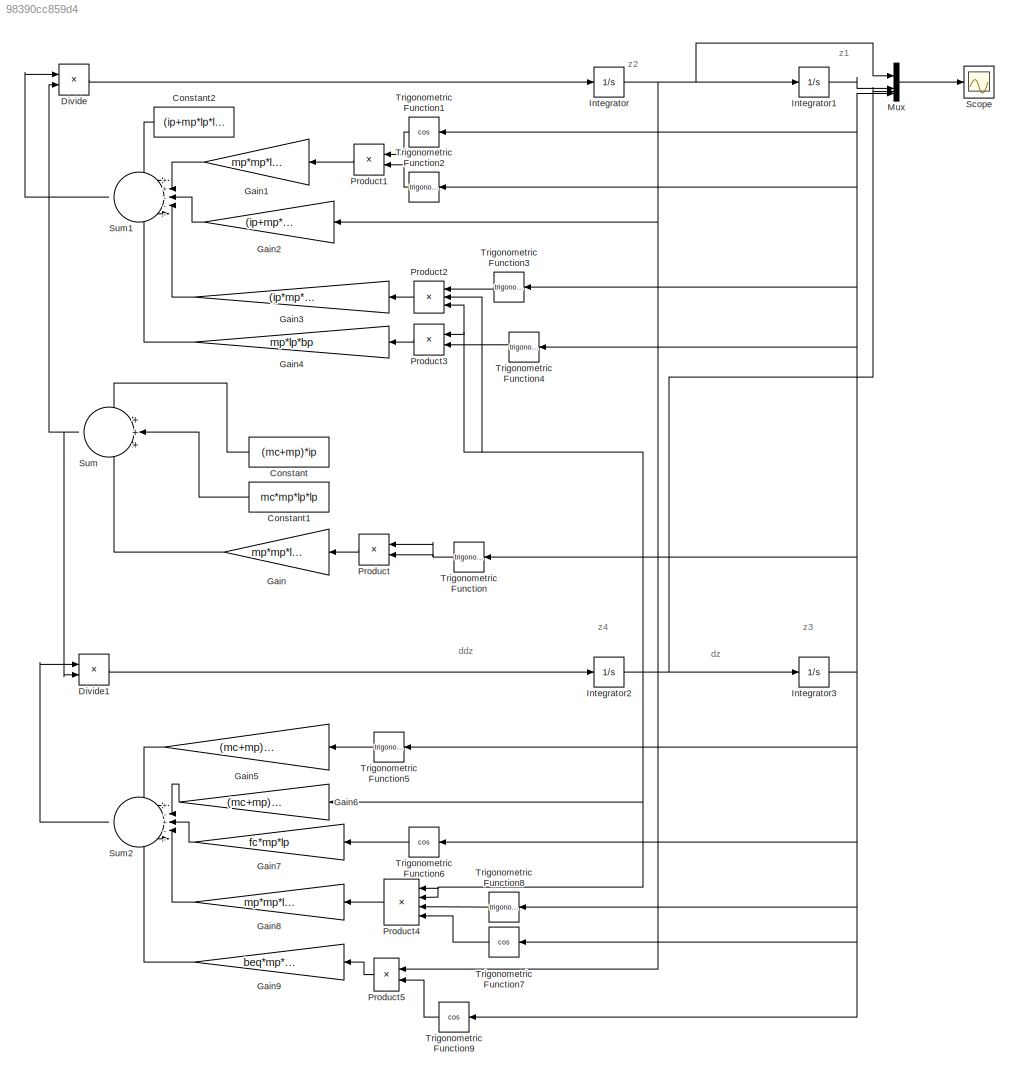
MODEL slx_98390cc859d4
KIND model
CONFIG AbsTol = auto
CONFIG EnableMultiTasking = off
CONFIG FixedStep = auto
CONFIG InitFcn = ip = 0.0079;     \nmc = 0.7031;     \nlp = 0.3302;     \nmp = 0.23;       \nfc = 0;          \nbeq = 4.3;       \ng = 9.81;        \nbp = 0.0024;
CONFIG MaxStep = auto
CONFIG MinStep = auto
CONFIG RelTol = 1e-3
CONFIG SampleTimeConstraint = Unconstrained
CONFIG SolverName = VariableStepAuto
CONFIG StartTime = 0.0
CONFIG StopTime = 10.0
BLOCK [Constant] Constant
  NameLocation = top
  Value = (mc+mp)*ip
BLOCK [Constant] Constant1
  NameLocation = top
  Value = mc*mp*lp*lp
BLOCK [Constant] Constant2
  NameLocation = top
  Value = (ip+mp*lp*lp)*fc
BLOCK [Product] Divide
  Inputs = */
BLOCK [Product] Divide1
  Inputs = */
BLOCK [Gain] Gain
  Gain = mp*mp*lp*lp
  NameLocation = top
BLOCK [Gain] Gain1
  Gain = mp*mp*lp*lp*g
  NameLocation = top
BLOCK [Gain] Gain2
  Gain = (ip+mp*lp*lp)*beq
  NameLocation = top
BLOCK [Gain] Gain3
  Gain = (ip*mp*lp-mp*mp*lp*lp*lp)
  NameLocation = top
BLOCK [Gain] Gain4
  Gain = mp*lp*bp
  NameLocation = top
BLOCK [Gain] Gain5
  Gain = (mc+mp)*mp*g*lp
  NameLocation = top
BLOCK [Gain] Gain6
  Gain = (mc+mp)*bp
  NameLocation = top
BLOCK [Gain] Gain7
  Gain = fc*mp*lp
  NameLocation = top
BLOCK [Gain] Gain8
  Gain = mp*mp*lp*lp
  NameLocation = top
BLOCK [Gain] Gain9
  Gain = beq*mp*lp
  NameLocation = top
BLOCK [Integrator] Integrator
BLOCK [Integrator] Integrator1
BLOCK [Integrator] Integrator2
BLOCK [Integrator] Integrator3
  InitialCondition = 1 * pi/180
BLOCK [Mux] Mux
  DisplayOption = bar
BLOCK [Product] Product
  NameLocation = top
BLOCK [Product] Product1
  NameLocation = top
BLOCK [Product] Product2
  Inputs = 3
  NameLocation = top
BLOCK [Product] Product3
  NameLocation = top
BLOCK [Product] Product4
  Inputs = 4
  NameLocation = top
BLOCK [Product] Product5
  NameLocation = top
BLOCK [Scope] Scope
  Floating = off
  NumInputPorts = 1
  ScopeSpecificationString = Simulink.scopes.TimeScopeBlockCfg('CurrentConfiguration', extmgr.ConfigurationSet(extmgr.Configuration('Core','General UI',true),extmgr.Configuration('Core','Source UI',true),extmgr.Configuration('Sources','WiredSimulink',true),extmgr.Configuration('Visuals','Time Domain',true,'SerializedDisplays',{struct('MinYLimReal','-12.76977','MaxYLimReal','107.51134','YLabelReal','','MinYLimMag','0.00000','M...<+1504ch>
BLOCK [Sum] Sum
  Inputs = +++
  NameLocation = top
BLOCK [Sum] Sum1
  Inputs = ++---
  NameLocation = top
BLOCK [Sum] Sum2
  Inputs = +-+--
  NameLocation = top
BLOCK [Trigonometry] Trigonometric Function
  NameLocation = top
BLOCK [Trigonometry] Trigonometric Function1
  NameLocation = top
  Operator = cos
BLOCK [Trigonometry] Trigonometric Function2
  NameLocation = top
BLOCK [Trigonometry] Trigonometric Function3
  NameLocation = top
BLOCK [Trigonometry] Trigonometric Function4
  NameLocation = top
BLOCK [Trigonometry] Trigonometric Function5
  NameLocation = top
BLOCK [Trigonometry] Trigonometric Function6
  NameLocation = top
  Operator = cos
BLOCK [Trigonometry] Trigonometric Function7
  NameLocation = top
  Operator = cos
BLOCK [Trigonometry] Trigonometric Function8
  NameLocation = top
BLOCK [Trigonometry] Trigonometric Function9
  NameLocation = top
  Operator = cos
ANNOTATION (root): ddz
ANNOTATION (root): dz
ANNOTATION (root): z1
ANNOTATION (root): z2
ANNOTATION (root): z3
ANNOTATION (root): z4
LINE Constant1:1 -> Sum:2
LINE Constant2:1 -> Sum1:1
LINE Constant:1 -> Sum:1
LINE Divide1:1 -> Integrator2:1
LINE Divide:1 -> Integrator:1
LINE Gain1:1 -> Sum1:2
LINE Gain2:1 -> Sum1:3
LINE Gain3:1 -> Sum1:4
LINE Gain4:1 -> Sum1:5
LINE Gain5:1 -> Sum2:1
LINE Gain6:1 -> Sum2:2
LINE Gain7:1 -> Sum2:3
LINE Gain8:1 -> Sum2:4
LINE Gain9:1 -> Sum2:5
LINE Gain:1 -> Sum:3
LINE Integrator1:1 -> Mux:2
NET Integrator2:1 -> Gain6:1, Integrator3:1, Mux:3, Product2:2, Product2:3, Product3:1, Product4:1, Product4:2
NET Integrator3:1 -> Mux:4, Trigonometric Function1:1, Trigonometric Function2:1, Trigonometric Function3:1, Trigonometric Function4:1, Trigonometric Function5:1, Trigonometric Function6:1, Trigonometric Function7:1, Trigonometric Function8:1, Trigonometric Function9:1, Trigonometric Function:1
NET Integrator:1 -> Gain2:1, Integrator1:1, Mux:1, Product5:1
LINE Mux:1 -> Scope:1
LINE Product1:1 -> Gain1:1
LINE Product2:1 -> Gain3:1
LINE Product3:1 -> Gain4:1
LINE Product4:1 -> Gain8:1
LINE Product5:1 -> Gain9:1
LINE Product:1 -> Gain:1
LINE Sum1:1 -> Divide:1
LINE Sum2:1 -> Divide1:1
NET Sum:1 -> Divide1:2, Divide:2
LINE Trigonometric Function1:1 -> Product1:1
LINE Trigonometric Function2:1 -> Product1:2
LINE Trigonometric Function3:1 -> Product2:1
LINE Trigonometric Function4:1 -> Product3:2
LINE Trigonometric Function5:1 -> Gain5:1
LINE Trigonometric Function6:1 -> Gain7:1
LINE Trigonometric Function7:1 -> Product4:4
LINE Trigonometric Function8:1 -> Product4:3
LINE Trigonometric Function9:1 -> Product5:2
NET Trigonometric Function:1 -> Product:1, Product:2
note: NET lines group one-source signal fan-out (src -> all destinations, sorted); 1:1 wires keep LINE
